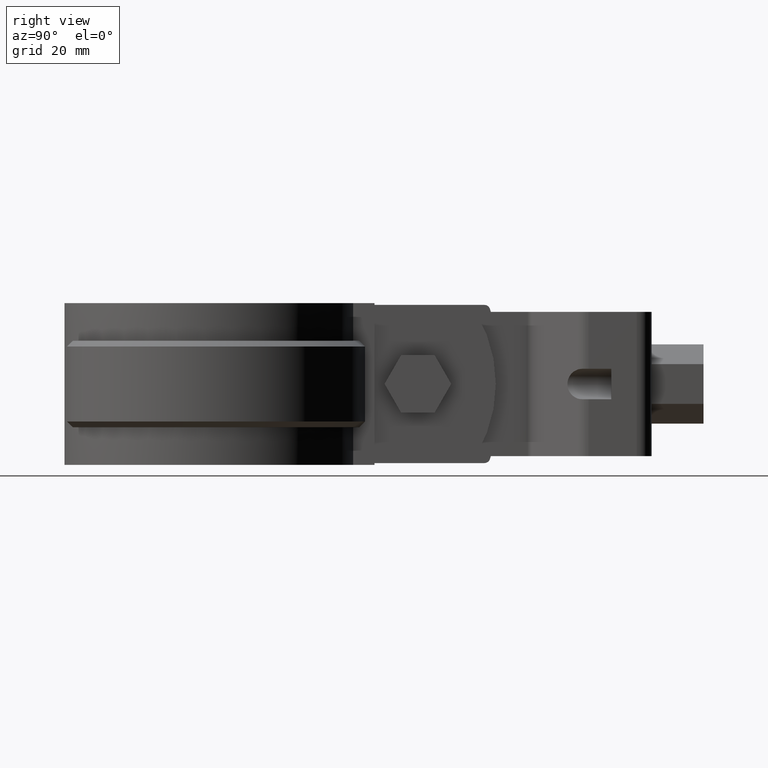
[diagram: clean part render]
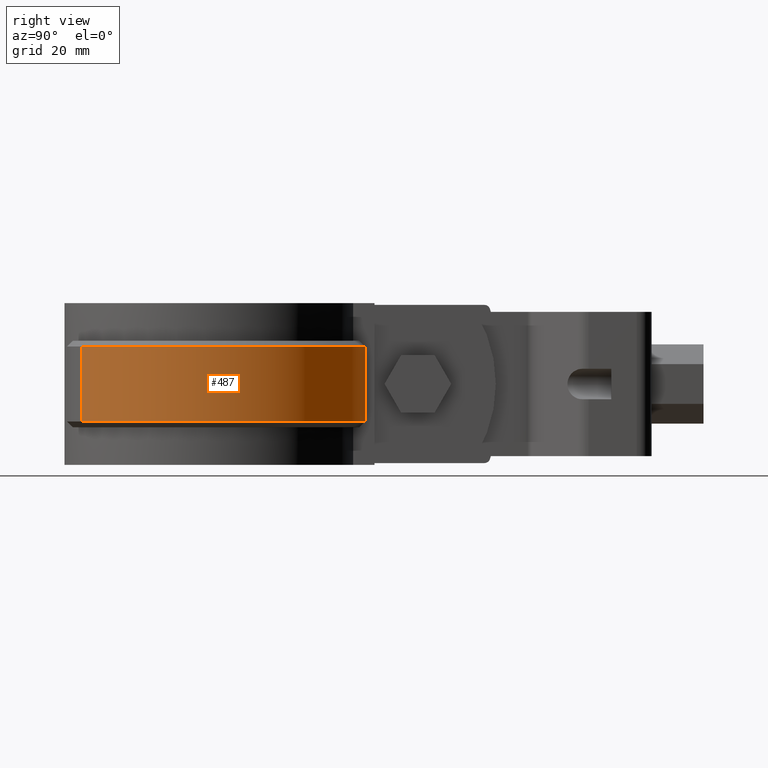
[diagram: same view with one face highlighted and labeled with its STEP entity id]
A machine part, right view. The second image highlights one B-rep face of the part: STEP entity #487.
In plain terms, the highlighted cylindrical surface (partial cylindrical patch) has radius 27.445 mm, axis along (0, 0, 1).
Its self-contained STEP definition (entity closure, byte-faithful):
#487 = ADVANCED_FACE( '', ( #983 ), #984, .T. );
#983 = FACE_OUTER_BOUND( '', #2076, .T. );
#984 = CYLINDRICAL_SURFACE( '', #2077, 27.4450000000000 );
#2076 = EDGE_LOOP( '', ( #5492, #5493, #5494, #5495 ) );
#2077 = AXIS2_PLACEMENT_3D( '', #5496, #5497, #5498 );
#5492 = ORIENTED_EDGE( '', *, *, #7728, .T. );
#5493 = ORIENTED_EDGE( '', *, *, #7567, .T. );
#5494 = ORIENTED_EDGE( '', *, *, #7737, .F. );
#5495 = ORIENTED_EDGE( '', *, *, #7736, .T. );
#5496 = CARTESIAN_POINT( '', ( -8.67361737988404E-016, -3.46944695195361E-015, -20.0000000000000 ) );
#5497 = DIRECTION( '', ( 0.000000000000000, 0.000000000000000, 1.00000000000000 ) );
#5498 = DIRECTION( '', ( 0.213196982952784, 0.977009235606210, 0.000000000000000 ) );
#7567 = EDGE_CURVE( '', #8715, #8719, #8721, .T. );
#7728 = EDGE_CURVE( '', #8976, #8715, #8977, .F. );
#7736 = EDGE_CURVE( '', #8979, #8976, #8987, .T. );
#7737 = EDGE_CURVE( '', #8979, #8719, #8988, .T. );
#8715 = VERTEX_POINT( '', #11631 );
#8719 = VERTEX_POINT( '', #11638 );
#8721 = CIRCLE( '', #11641, 27.4450000000000 );
#8976 = VERTEX_POINT( '', #13088 );
#8977 = LINE( '', #13089, #13090 );
#8979 = VERTEX_POINT( '', #13095 );
#8987 = CIRCLE( '', #13108, 27.4450000000000 );
#8988 = LINE( '', #13109, #13110 );
#11631 = CARTESIAN_POINT( '', ( 6.10000000000001, 26.7585131313382, -6.00000000000000 ) );
#11638 = CARTESIAN_POINT( '', ( 15.9691081303572, -22.3207439508848, -6.00000000000000 ) );
#11641 = AXIS2_PLACEMENT_3D( '', #14804, #14805, #14806 );
#13088 = CARTESIAN_POINT( '', ( 6.10000000000001, 26.7585131313382, -19.0000000000000 ) );
#13089 = CARTESIAN_POINT( '', ( 6.10000000000001, 26.7585131313382, -20.0000000000000 ) );
#13090 = VECTOR( '', #14984, 1000.00000000000 );
#13095 = CARTESIAN_POINT( '', ( 15.9691081303572, -22.3207439508848, -19.0000000000000 ) );
#13108 = AXIS2_PLACEMENT_3D( '', #14993, #14994, #14995 );
#13109 = CARTESIAN_POINT( '', ( 15.9691081303572, -22.3207439508848, -20.0000000000000 ) );
#13110 = VECTOR( '', #14996, 1000.00000000000 );
#14804 = CARTESIAN_POINT( '', ( -8.67361737988404E-016, -3.46944695195361E-015, -6.00000000000000 ) );
#14805 = DIRECTION( '', ( 0.000000000000000, 0.000000000000000, -1.00000000000000 ) );
#14806 = DIRECTION( '', ( -1.00000000000000, 0.000000000000000, 0.000000000000000 ) );
#14984 = DIRECTION( '', ( 0.000000000000000, 0.000000000000000, -1.00000000000000 ) );
#14993 = CARTESIAN_POINT( '', ( -8.67361737988404E-016, -3.46944695195361E-015, -19.0000000000000 ) );
#14994 = DIRECTION( '', ( 0.000000000000000, 0.000000000000000, 1.00000000000000 ) );
#14995 = DIRECTION( '', ( 1.00000000000000, 0.000000000000000, 0.000000000000000 ) );
#14996 = DIRECTION( '', ( 0.000000000000000, 0.000000000000000, 1.00000000000000 ) );